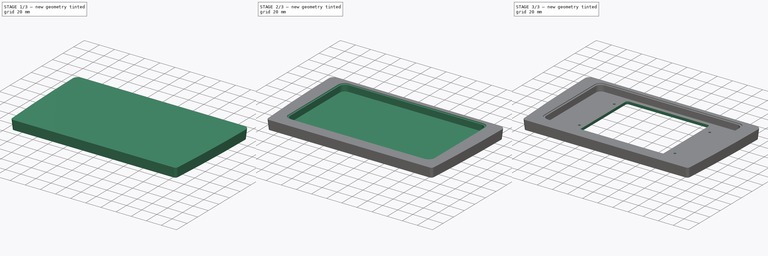
[diagram: build sequence overview — one tinted view per stage of 3, left to right]
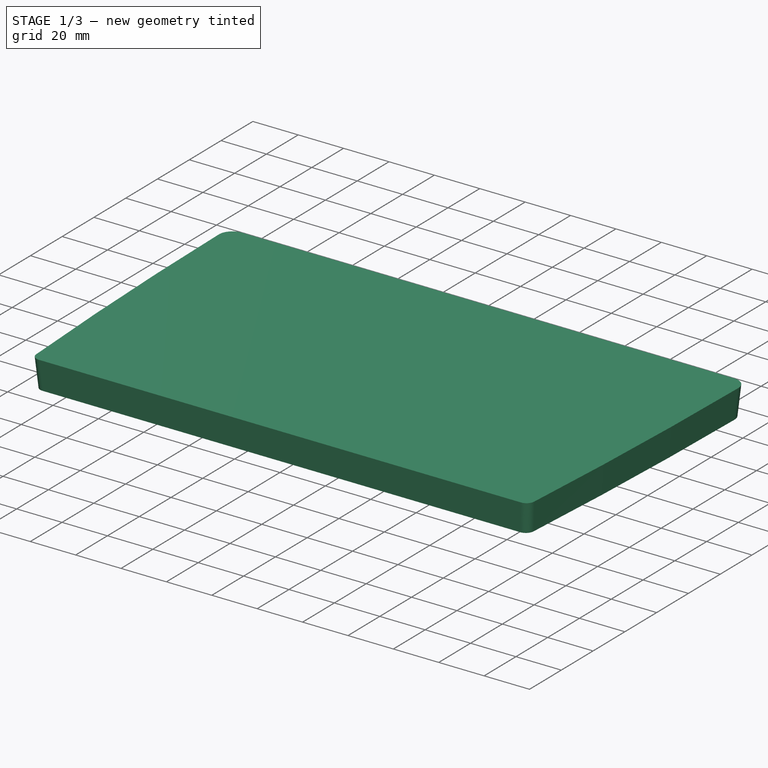
[diagram: stage 1 of 3 — iso view after this stage's code; geometry added in this stage tinted green]
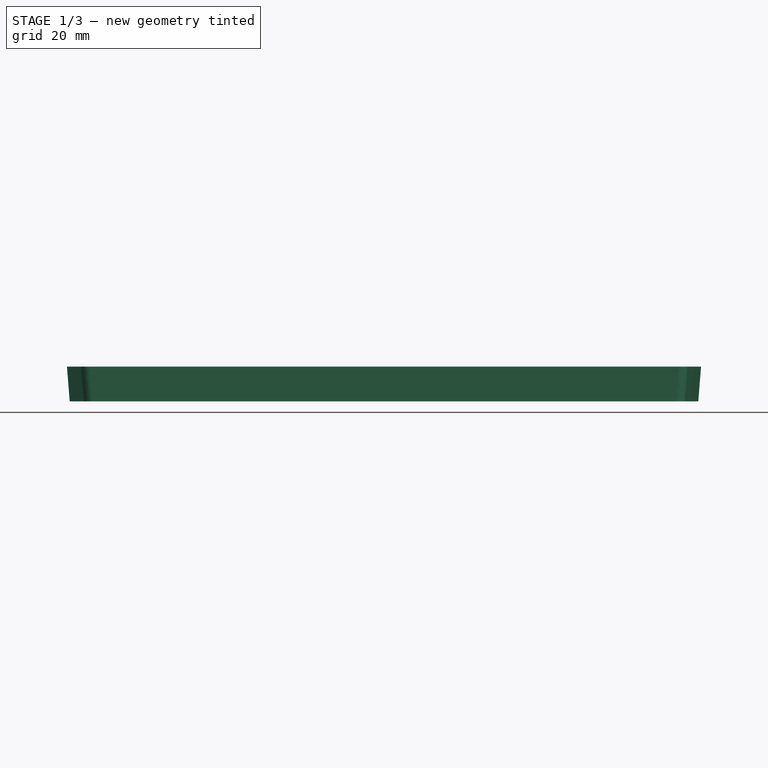
[diagram: stage 1 of 3 — front view after this stage's code; geometry added in this stage tinted green]
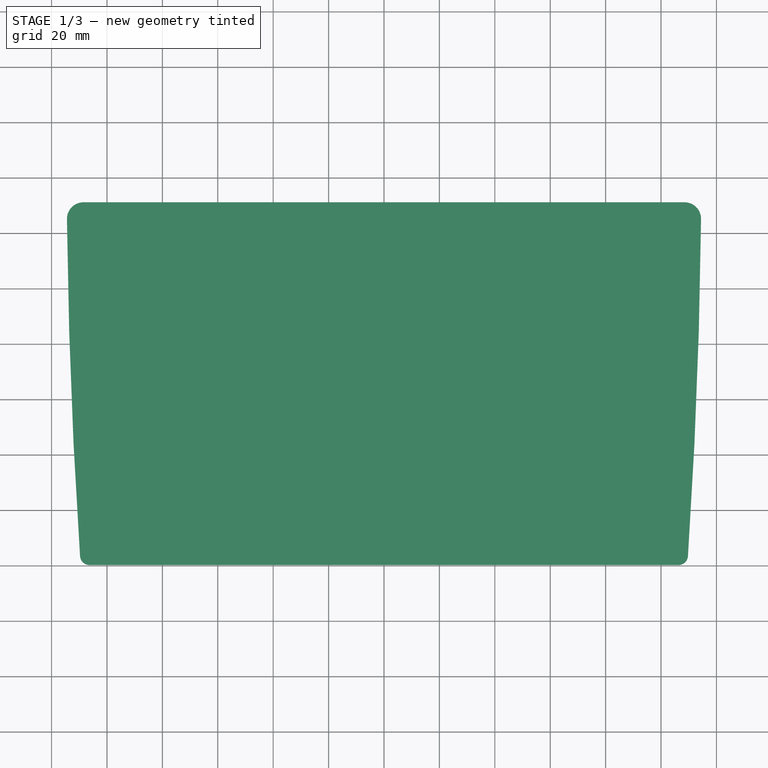
[diagram: stage 1 of 3 — top view after this stage's code; geometry added in this stage tinted green]
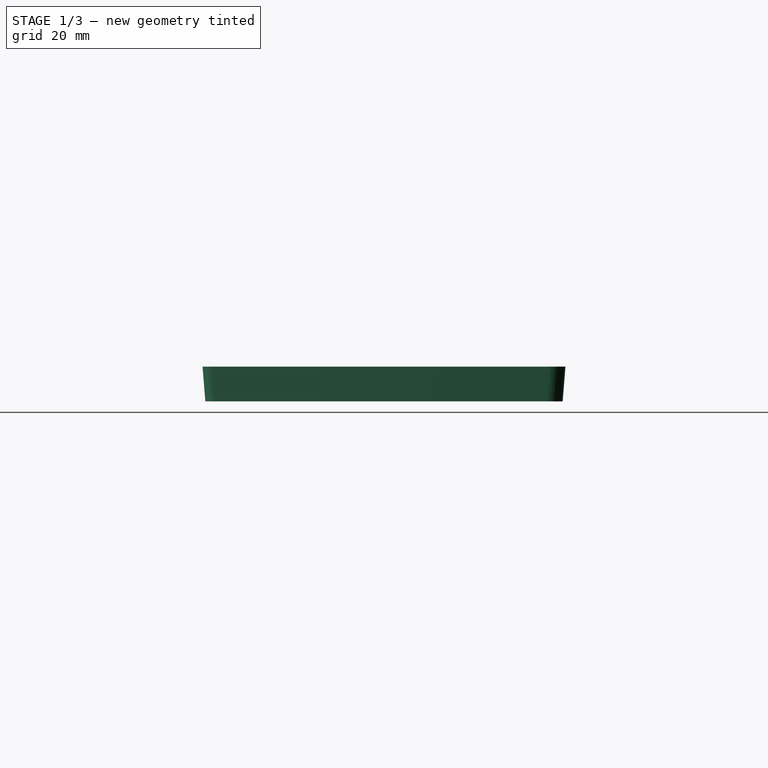
[diagram: stage 1 of 3 — right view after this stage's code; geometry added in this stage tinted green]
FCSTD DOCUMENT  (FreeCAD 0.19R24291 (Git))
Label: test-mount_v3
License: All rights reserved
LicenseURL: http://en.wikipedia.org/wiki/All_rights_reserved
objects: Sketcher::SketchObject×7, PartDesign::Pocket×5, PartDesign::Fillet×2, PartDesign::AdditiveLoft×1, PartDesign::Body×1
note: 24 computed .brp shape members not serialized (recipe doc carries the construction recipe); baked Part::Feature solids carry a one-line shape summary decoded from their .brp

FEATURE [Sketcher::SketchObject] Sketch
  FullyConstrained = true
  MapMode = 5
  Support = -> [XY_Plane]
  sketch-geometry (9):
    g0: LineSegment StartX=-114.5 StartY=111 StartZ=0 EndX=114.5 EndY=111 EndZ=0
    g1: LineSegment StartX=109.5 StartY=-20 StartZ=0 EndX=-109.5 EndY=-20 EndZ=0
    g2: GeomPoint X=114.5 Y=111 Z=0
    g3: GeomPoint X=-112 Y=45.5 Z=0
    g4: GeomPoint X=112 Y=45.5 Z=0
    g5: GeomPoint X=113 Y=45.5 Z=0
    g6: GeomPoint X=-113 Y=45.5 Z=0
    g7: ArcOfCircle CenterX=2035.75 CenterY=127.475 CenterZ=0 NormalX=0 NormalY=0 NormalZ=1 AngleXU=0 Radius=2150.31 StartAngle=3.14925 EndAngle=3.21023
    g8: ArcOfCircle CenterX=-2035.75 CenterY=127.475 CenterZ=0 NormalX=0 NormalY=0 NormalZ=1 AngleXU=0 Radius=2150.31 StartAngle=6.21455 EndAngle=6.27552
  constraints (23):
    c: Horizontal(g0)
    c: Horizontal(g1)
    c: DistanceX(g0,g0) = 229
    c: DistanceX(g1,g1) = 219
    c: DistanceX(g1,g-1) = 109.5
    c: DistanceY(g1,g-1) = 20
    c: DistanceY(g1,g0) = 131
    c: Coincident(g2,g0)
    c: DistanceX(g-1,g0) = 114.5
    c: DistanceY(g4,g0) = 65.5
    c: DistanceY(g3,g0) = 65.5
    c: DistanceY(g5,g0) = 65.5
    c: DistanceY(g6,g0) = 65.5
    c: Coincident(g7,g0)
    c: Coincident(g7,g1)
    c: PointOnObject(g6,g7)
    c: Coincident(g8,g0)
    c: Coincident(g8,g1)
    c: PointOnObject(g5,g8)
    c: DistanceX(g6,g3) = 1
    c: DistanceX(g4,g5) = 1
    c: DistanceX(g4) = 112
    c: DistanceX(g3) = -112
FEATURE [Sketcher::SketchObject] Sketch001  label="Sketch_back"
  AttachmentOffset = pos=(0,0,-12.5) rot=(0,0,1;0rad)
  FullyConstrained = true
  MapMode = 5
  Placement = pos=(0,0,-12.5) rot=(0,0,1;0rad)
  Support = -> [XY_Plane]
  sketch-geometry (9):
    g0: LineSegment StartX=-113.5 StartY=110 StartZ=0 EndX=113.5 EndY=110 EndZ=0
    g1: LineSegment StartX=108.5 StartY=-19 StartZ=0 EndX=-108.5 EndY=-19 EndZ=0
    g2: GeomPoint X=113.5 Y=110 Z=0
    g3: GeomPoint X=-111 Y=45.5 Z=0
    g4: GeomPoint X=111 Y=45.5 Z=0
    g5: GeomPoint X=112 Y=45.5 Z=0
    g6: GeomPoint X=-112 Y=45.5 Z=0
    g7: ArcOfCircle CenterX=1971.75 CenterY=126.227 CenterZ=0 NormalX=0 NormalY=0 NormalZ=1 AngleXU=0 Radius=2085.31 StartAngle=3.14937 EndAngle=3.21129
    g8: ArcOfCircle CenterX=-1971.75 CenterY=126.227 CenterZ=0 NormalX=0 NormalY=0 NormalZ=1 AngleXU=0 Radius=2085.31 StartAngle=6.21349 EndAngle=6.2754
  constraints (23):
    c: Horizontal(g0)
    c: Horizontal(g1)
    c: DistanceX(g0,g0) = 227
    c: DistanceX(g1,g1) = 217
    c: DistanceX(g1,g-1) = 108.5
    c: DistanceY(g1,g-1) = 19
    c: DistanceY(g1,g0) = 129
    c: Coincident(g2,g0)
    c: DistanceX(g-1,g0) = 113.5
    c: DistanceY(g4,g0) = 64.5
    c: DistanceY(g3,g0) = 64.5
    c: DistanceY(g5,g0) = 64.5
    c: DistanceY(g6,g0) = 64.5
    c: Coincident(g7,g0)
    c: Coincident(g7,g1)
    c: PointOnObject(g6,g7)
    c: Coincident(g8,g0)
    c: Coincident(g8,g1)
    c: PointOnObject(g5,g8)
    c: DistanceX(g6,g3) = 1
    c: DistanceX(g4,g5) = 1
    c: DistanceX(g4) = 111
    c: DistanceX(g3) = -111
FEATURE [PartDesign::AdditiveLoft] AdditiveLoft
  Closed = false
  Profile = -> Sketch
  Ruled = false
  Sections = -> [Sketch001]
FEATURE [PartDesign::Fillet] Fillet
  Base = -> AdditiveLoft [Edge11,Edge12]
  BaseFeature = -> AdditiveLoft
  Radius = 6
  SupportTransform = false
FEATURE [PartDesign::Fillet] Fillet001
  Base = -> Fillet [Edge9,Edge13]
  BaseFeature = -> Fillet
  Radius = 3.5
  SupportTransform = false
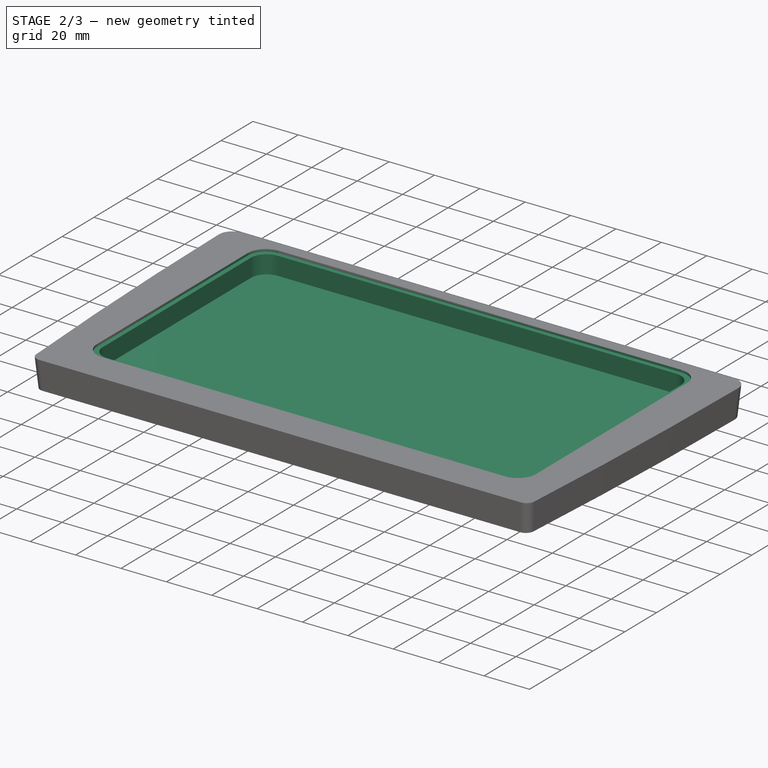
[diagram: stage 2 of 3 — iso view after this stage's code; geometry added in this stage tinted green]
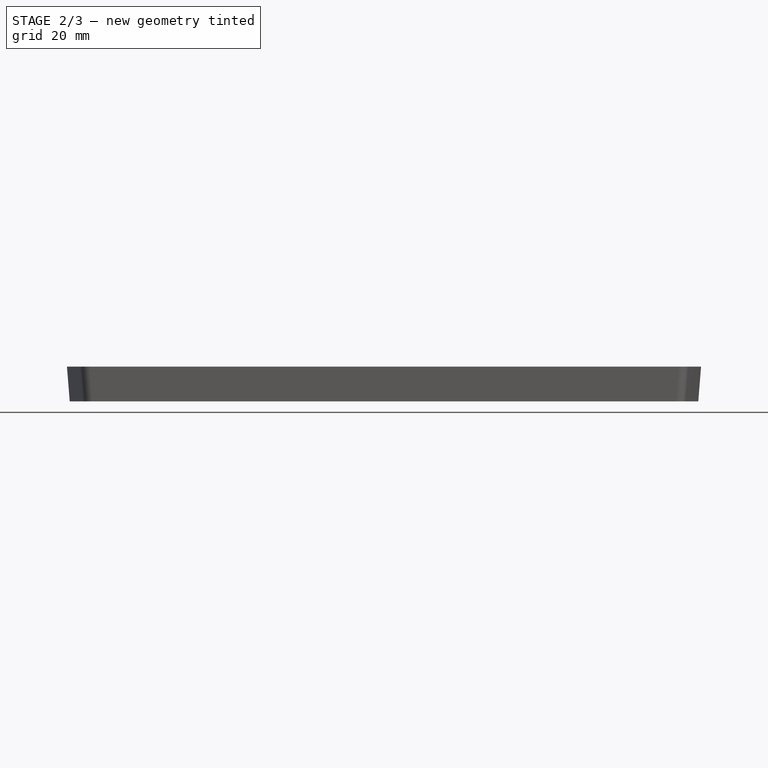
[diagram: stage 2 of 3 — front view after this stage's code; geometry added in this stage tinted green]
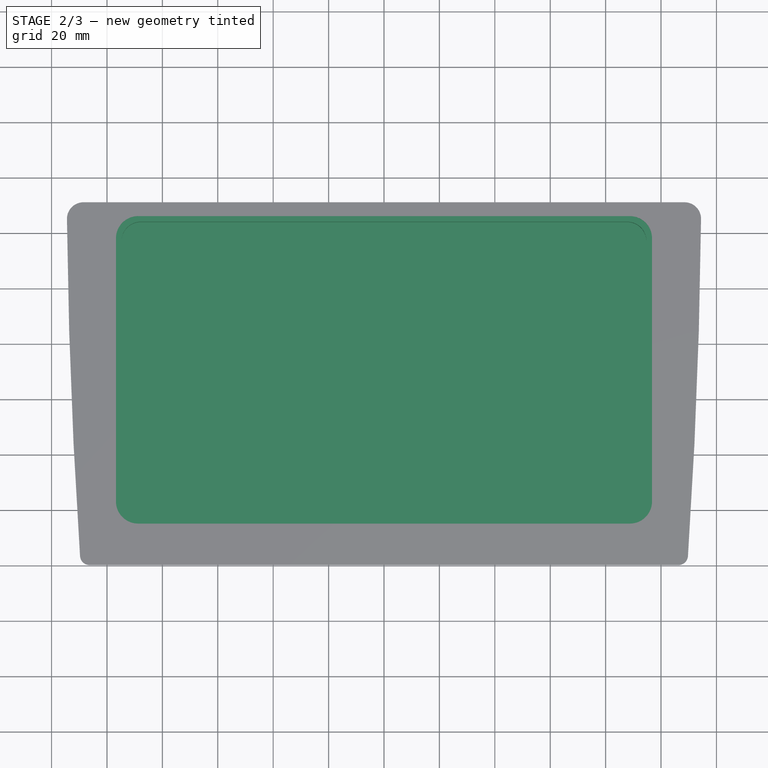
[diagram: stage 2 of 3 — top view after this stage's code; geometry added in this stage tinted green]
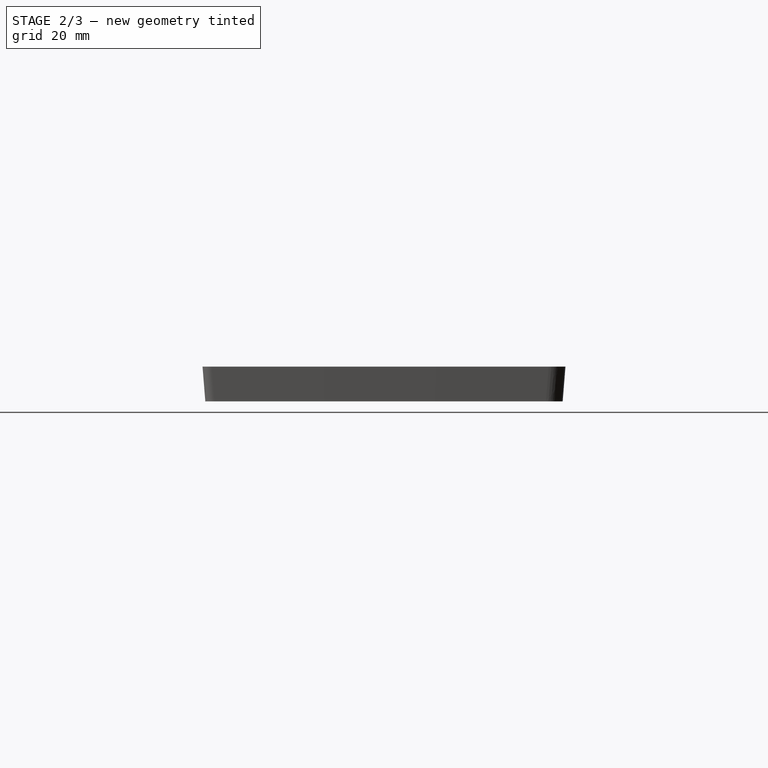
[diagram: stage 2 of 3 — right view after this stage's code; geometry added in this stage tinted green]
FEATURE [Sketcher::SketchObject] Sketch002
  ExternalGeometry = -> [Fillet001]
  FullyConstrained = true
  MapMode = 5
  Support = -> [Fillet001]
  sketch-geometry (8):
    g0: LineSegment StartX=-88.75 StartY=106 StartZ=0 EndX=88.75 EndY=106 EndZ=0
    g1: LineSegment StartX=96.75 StartY=98 StartZ=0 EndX=96.75 EndY=3 EndZ=0
    g2: LineSegment StartX=88.75 StartY=-5 StartZ=0 EndX=-88.75 EndY=-5 EndZ=0
    g3: LineSegment StartX=-96.75 StartY=3 StartZ=0 EndX=-96.75 EndY=98 EndZ=0
    g4: ArcOfCircle CenterX=-88.75 CenterY=98 CenterZ=0 NormalX=0 NormalY=0 NormalZ=1 AngleXU=0 Radius=8 StartAngle=1.5708 EndAngle=3.14159
    g5: ArcOfCircle CenterX=88.75 CenterY=98 CenterZ=0 NormalX=0 NormalY=0 NormalZ=1 AngleXU=0 Radius=8 StartAngle=-9e-16 EndAngle=1.5708
    g6: ArcOfCircle CenterX=88.75 CenterY=3 CenterZ=0 NormalX=0 NormalY=0 NormalZ=1 AngleXU=0 Radius=8 StartAngle=4.71239 EndAngle=6.28319
    g7: ArcOfCircle CenterX=-88.75 CenterY=3 CenterZ=0 NormalX=0 NormalY=0 NormalZ=1 AngleXU=0 Radius=8 StartAngle=3.14159 EndAngle=4.71239
  constraints (20):
    c: Horizontal(g0)
    c: Horizontal(g2)
    c: Vertical(g1)
    c: Vertical(g3)
    c: Tangent(g0,g4) = 1.5708
    c: Tangent(g3,g4) = 1.5708
    c: Tangent(g0,g5) = 1.5708
    c: Tangent(g1,g5) = 1.5708
    c: Tangent(g1,g6) = 1.5708
    c: Tangent(g2,g6) = 1.5708
    c: Tangent(g3,g7) = 1.5708
    c: Tangent(g2,g7) = 1.5708
    c: DistanceX(g3,g4) = 8
    c: DistanceX(g3,g7) = 8
    c: DistanceX(g5,g1) = 8
    c: DistanceX(g6,g1) = 8
    c: DistanceX(g3,g1) = 193.5
    c: DistanceY(g2,g0) = 111
    c: DistanceY(g0,g-3) = 5
    c: DistanceX(g3,g-1) = 96.75
FEATURE [PartDesign::Pocket] Pocket
  BaseFeature = -> Fillet001
  Length = 1
  Length2 = 100
  Profile = -> Sketch002
  Type = 0
FEATURE [Sketcher::SketchObject] Sketch003
  ExternalGeometry = -> [Pocket]
  FullyConstrained = false
  MapMode = 5
  Placement = pos=(0,0,-1) rot=(0,0,1;0rad)
  Support = -> [Pocket]
  sketch-geometry (9):
    g0: LineSegment StartX=-87.75 StartY=104 StartZ=0 EndX=87.75 EndY=104 EndZ=0
    g1: LineSegment StartX=94.75 StartY=97 StartZ=0 EndX=94.75 EndY=4 EndZ=0
    g2: LineSegment StartX=87.75 StartY=-3 StartZ=0 EndX=-87.75 EndY=-3 EndZ=0
    g3: LineSegment StartX=-94.75 StartY=4 StartZ=0 EndX=-94.75 EndY=97 EndZ=0
    g4: ArcOfCircle CenterX=87.75 CenterY=97 CenterZ=0 NormalX=0 NormalY=0 NormalZ=1 AngleXU=0 Radius=7 StartAngle=7e-16 EndAngle=1.5708
    g5: ArcOfCircle CenterX=87.75 CenterY=4 CenterZ=0 NormalX=0 NormalY=0 NormalZ=1 AngleXU=0 Radius=7 StartAngle=4.71239 EndAngle=6.28319
    g6: ArcOfCircle CenterX=-87.75 CenterY=4 CenterZ=0 NormalX=0 NormalY=0 NormalZ=1 AngleXU=0 Radius=7 StartAngle=3.14159 EndAngle=4.71239
    g7: ArcOfCircle CenterX=-87.75 CenterY=97 CenterZ=0 NormalX=0 NormalY=0 NormalZ=1 AngleXU=0 Radius=7 StartAngle=1.5708 EndAngle=3.14159
    g8: GeomPoint X=-96.75 Y=94.7793 Z=0
  constraints (21):
    c: Horizontal(g0)
    c: Horizontal(g2)
    c: Vertical(g1)
    c: Vertical(g3)
    c: Tangent(g0,g4) = 1.5708
    c: Tangent(g1,g4) = 1.5708
    c: Tangent(g1,g5) = 1.5708
    c: Tangent(g2,g5) = 1.5708
    c: Tangent(g3,g6) = 1.5708
    c: Tangent(g2,g6) = 1.5708
    c: Tangent(g3,g7) = 1.5708
    c: Tangent(g0,g7) = 1.5708
    c: DistanceX(g3,g7) = 7
    c: DistanceX(g4,g1) = 7
    c: DistanceX(g5,g1) = 7
    c: DistanceX(g3,g6) = 7
    c: DistanceY(g0,g-3) = 2
    c: PointOnObject(g8,g-4)
    c: DistanceX(g8,g3) = 2
    c: DistanceY(g-5,g2) = 2
    c: DistanceX(g1,g-6) = 2
FEATURE [PartDesign::Pocket] Pocket001
  BaseFeature = -> Pocket
  Length = 8
  Length2 = 100
  Profile = -> Sketch003
  Type = 0
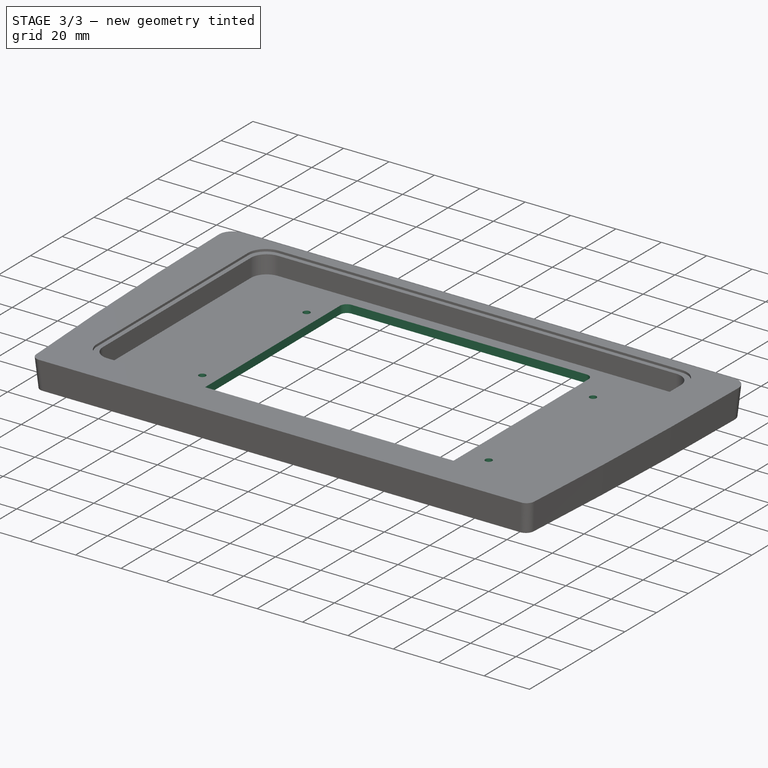
[diagram: stage 3 of 3 — iso view after this stage's code; geometry added in this stage tinted green]
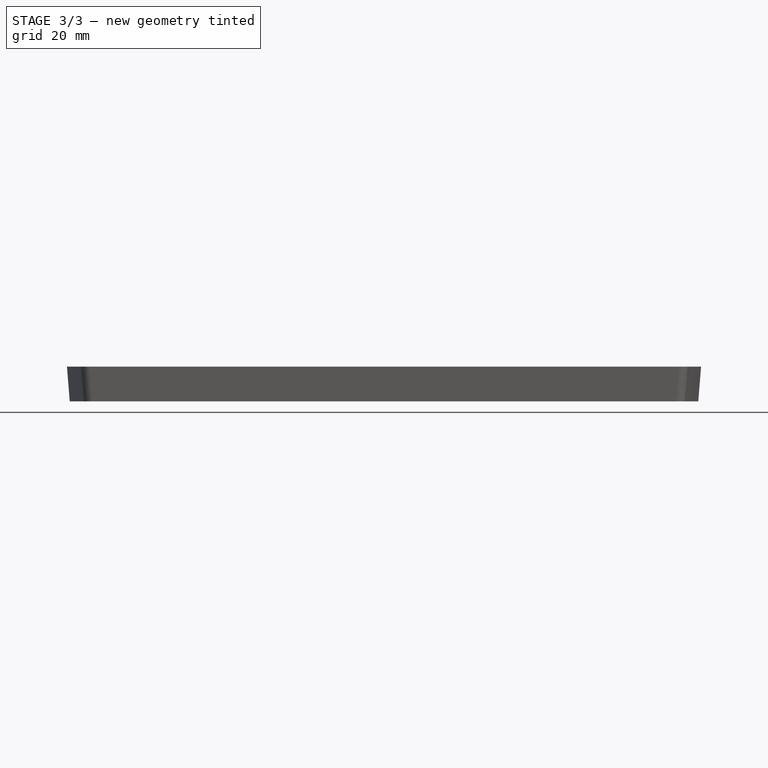
[diagram: stage 3 of 3 — front view after this stage's code; geometry added in this stage tinted green]
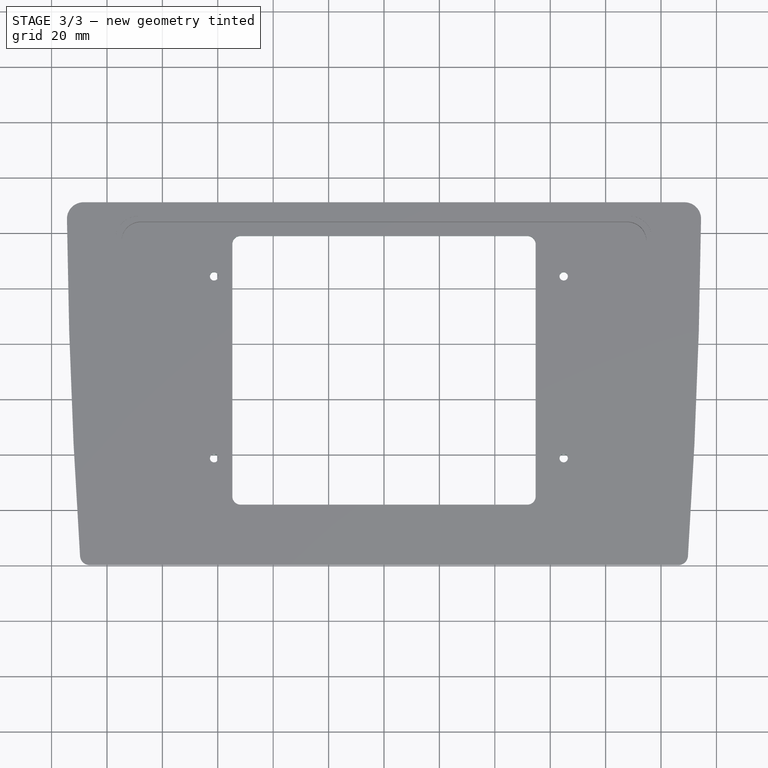
[diagram: stage 3 of 3 — top view after this stage's code; geometry added in this stage tinted green]
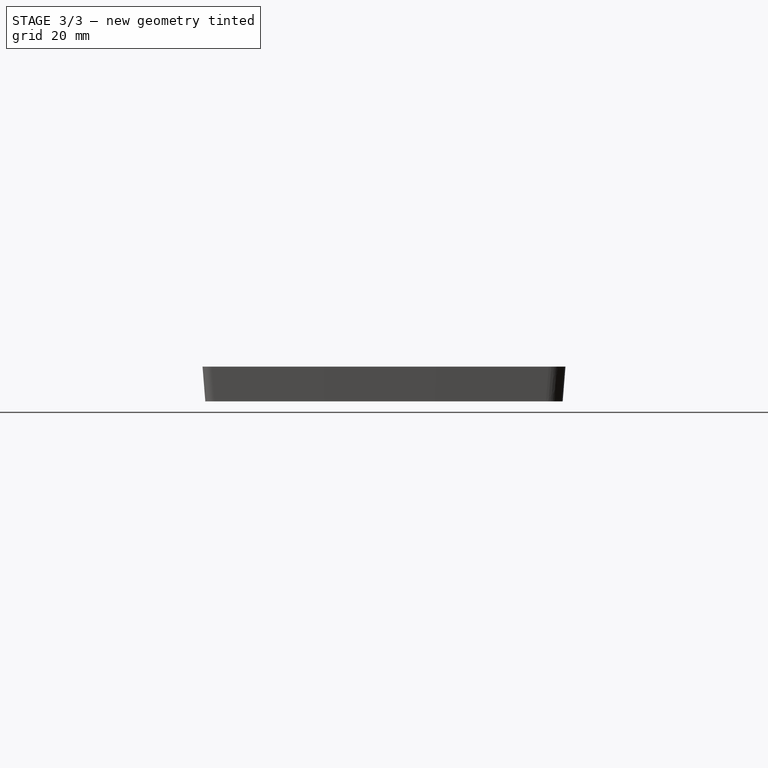
[diagram: stage 3 of 3 — right view after this stage's code; geometry added in this stage tinted green]
FEATURE [Sketcher::SketchObject] Sketch004
  ExternalGeometry = -> [Pocket001]
  FullyConstrained = true
  MapMode = 5
  Placement = pos=(0,0,-9) rot=(0,0,1;0rad)
  Support = -> [Pocket001]
  sketch-geometry (4):
    g0: Circle CenterX=-61.34 CenterY=84.42 CenterZ=0 NormalX=0 NormalY=0 NormalZ=1 AngleXU=0 Radius=1.5
    g1: Circle CenterX=64.86 CenterY=84.42 CenterZ=0 NormalX=0 NormalY=0 NormalZ=1 AngleXU=0 Radius=1.5
    g2: Circle CenterX=64.86 CenterY=18.77 CenterZ=0 NormalX=0 NormalY=0 NormalZ=1 AngleXU=0 Radius=1.5
    g3: Circle CenterX=-61.34 CenterY=18.77 CenterZ=0 NormalX=0 NormalY=0 NormalZ=1 AngleXU=0 Radius=1.5
  constraints (13):
    c: DistanceX(g3,g0) = 0
    c: DistanceX(g0,g1) = 126.2
    c: DistanceX(g2,g1) = 0
    c: DistanceY(g-6,g-6) = 0
    c: DistanceY(g0,g-6) = 19.58
    c: DistanceY(g3,g0) = 65.65
    c: DistanceY(g3,g2) = 0
    c: Diameter(g0) = 3
    c: Diameter(g3) = 3
    c: Diameter(g1) = 3
    c: Diameter(g2) = 3
    c: DistanceY(g1,g0) = 0
    c: DistanceX(g1,g-5) = 29.89
FEATURE [PartDesign::Pocket] Pocket002
  BaseFeature = -> Pocket001
  Length = 5
  Length2 = 100
  Profile = -> Sketch004
  Type = 0
FEATURE [Sketcher::SketchObject] Sketch005
  ExternalGeometry = -> [Pocket002]
  FullyConstrained = true
  MapMode = 5
  Placement = pos=(0,0,-9) rot=(0,0,1;0rad)
  Support = -> [Pocket002]
  sketch-geometry (8):
    g0: LineSegment StartX=-51.75 StartY=99 StartZ=0 EndX=51.75 EndY=99 EndZ=0
    g1: LineSegment StartX=54.75 StartY=96 StartZ=0 EndX=54.75 EndY=5 EndZ=0
    g2: LineSegment StartX=51.75 StartY=2 StartZ=0 EndX=-51.75 EndY=2 EndZ=0
    g3: LineSegment StartX=-54.75 StartY=5 StartZ=0 EndX=-54.75 EndY=96 EndZ=0
    g4: ArcOfCircle CenterX=-51.75 CenterY=96 CenterZ=0 NormalX=0 NormalY=0 NormalZ=1 AngleXU=0 Radius=3 StartAngle=1.5708 EndAngle=3.14159
    g5: ArcOfCircle CenterX=-51.75 CenterY=5 CenterZ=0 NormalX=0 NormalY=0 NormalZ=1 AngleXU=0 Radius=3 StartAngle=3.14159 EndAngle=4.71239
    g6: ArcOfCircle CenterX=51.75 CenterY=5 CenterZ=0 NormalX=0 NormalY=0 NormalZ=1 AngleXU=0 Radius=3 StartAngle=4.71239 EndAngle=6.28319
    g7: ArcOfCircle CenterX=51.75 CenterY=96 CenterZ=0 NormalX=0 NormalY=0 NormalZ=1 AngleXU=0 Radius=3 StartAngle=-2.7e-15 EndAngle=1.5708
  constraints (20):
    c: Horizontal(g0)
    c: Horizontal(g2)
    c: Vertical(g1)
    c: Vertical(g3)
    c: Tangent(g0,g4) = 1.5708
    c: Tangent(g3,g4) = 1.5708
    c: Tangent(g3,g5) = 1.5708
    c: Tangent(g2,g5) = 1.5708
    c: Tangent(g1,g6) = 1.5708
    c: Tangent(g2,g6) = 1.5708
    c: Tangent(g0,g7) = 1.5708
    c: Tangent(g1,g7) = 1.5708
    c: DistanceX(g-4,g3) = 40
    c: DistanceX(g1,g-5) = 40
    c: DistanceY(g0,g-3) = 5
    c: DistanceY(g-6,g2) = 5
    c: DistanceX(g3,g4) = 3
    c: DistanceX(g7,g1) = 3
    c: DistanceX(g6,g1) = 3
    c: DistanceX(g3,g5) = 3
FEATURE [PartDesign::Pocket] Pocket003
  BaseFeature = -> Pocket002
  Length = 5
  Length2 = 100
  Profile = -> Sketch005
  Type = 0
FEATURE [Sketcher::SketchObject] Sketch006
  ExternalGeometry = -> [Pocket003]
  FullyConstrained = true
  MapMode = 5
  Placement = pos=(0,0,-12.5) rot=(1,0,0;3.14159rad)
  Support = -> [Pocket003]
  sketch-geometry (4):
    g0: Circle CenterX=97.5 CenterY=-86 CenterZ=0 NormalX=0 NormalY=0 NormalZ=1 AngleXU=0 Radius=2
    g1: Circle CenterX=97.5 CenterY=-2 CenterZ=0 NormalX=0 NormalY=0 NormalZ=1 AngleXU=0 Radius=2
    g2: Circle CenterX=-97.5 CenterY=-2 CenterZ=0 NormalX=0 NormalY=0 NormalZ=1 AngleXU=0 Radius=2
    g3: Circle CenterX=-97.5 CenterY=-86 CenterZ=0 NormalX=0 NormalY=0 NormalZ=1 AngleXU=0 Radius=2
  constraints (12):
    c: DistanceY(g-5,g0) = 24
    c: DistanceY(g3,g0) = 0
    c: DistanceY(g3,g2) = 84
    c: DistanceY(g1,g2) = 0
    c: DistanceX(g3,g0) = 195
    c: DistanceX(g3,g2) = 0
    c: DistanceX(g1,g0) = 0
    c: DistanceX(g-1,g0) = 97.5
    c: Diameter(g0) = 4
    c: Diameter(g3) = 4
    c: Diameter(g2) = 4
    c: Diameter(g1) = 4
FEATURE [PartDesign::Pocket] Pocket004
  BaseFeature = -> Pocket003
  Length = 5
  Length2 = 100
  Profile = -> Sketch006
  Type = 0
FEATURE [PartDesign::Body] Body
  Group = -> [Sketch001,Sketch,AdditiveLoft,Fillet,Fillet001,Sketch002,Pocket,Sketch003,Pocket001,Sketch004,Pocket002,Sketch005,Pocket003,Sketch006,Pocket004]
  Origin = -> Origin
  Tip = -> Pocket004
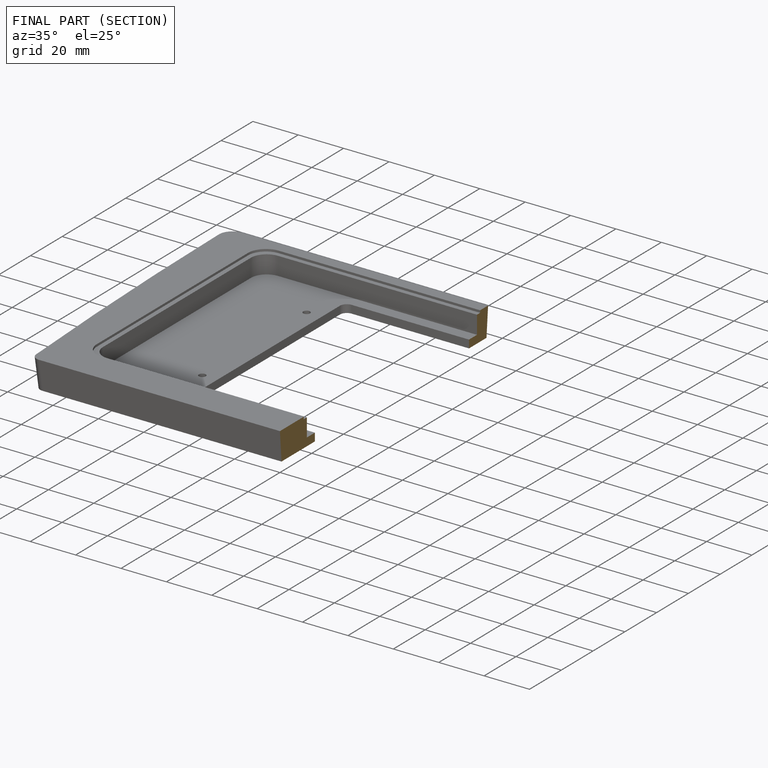
[diagram: finished part — half-section view (interior)]
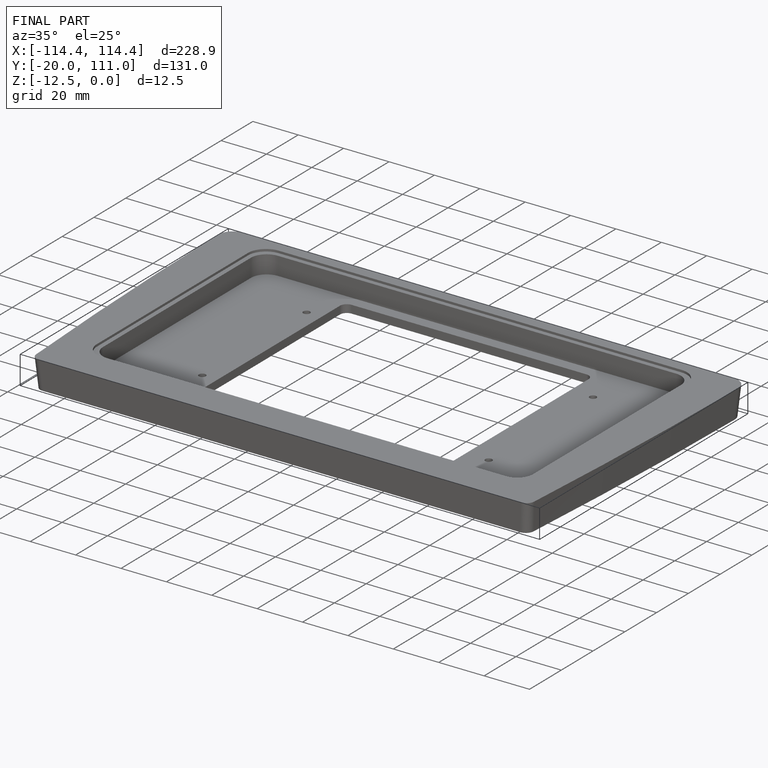
[diagram: finished part — iso view with bounding-box wireframe]
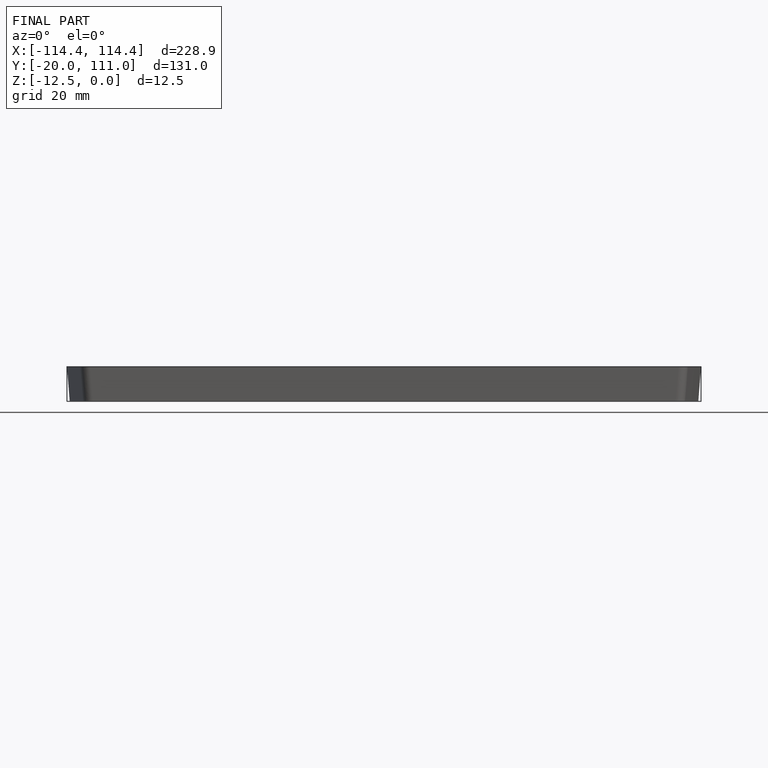
[diagram: finished part — front view with bounding-box wireframe]
